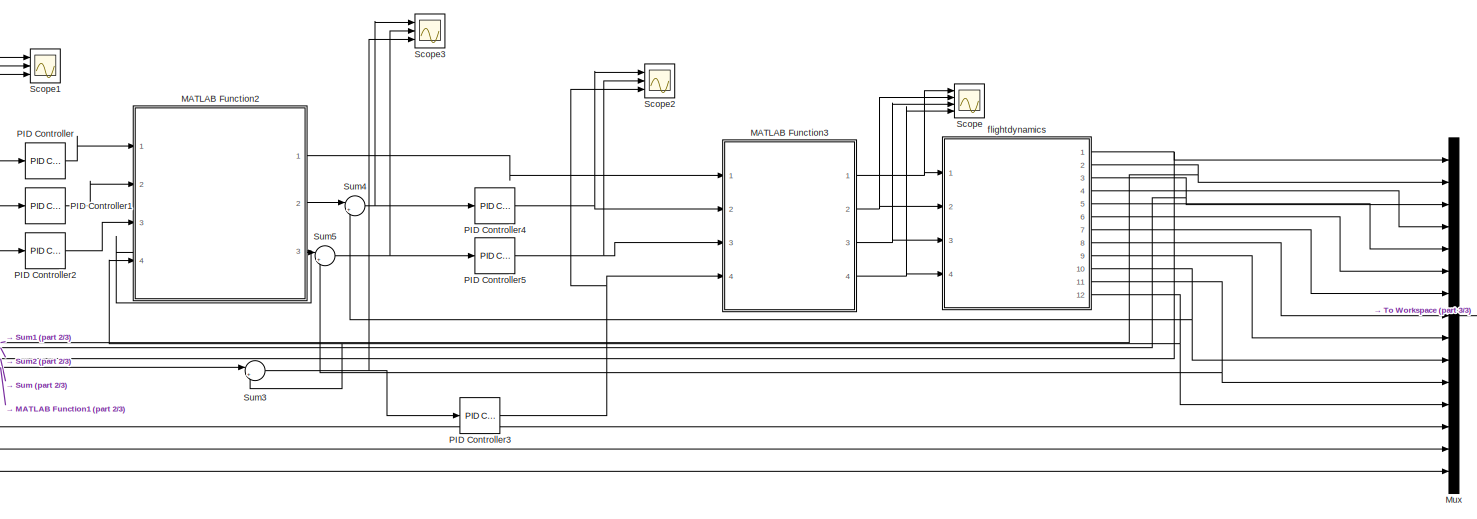
[diagram: root canvas - part 1/3, center side, full height]
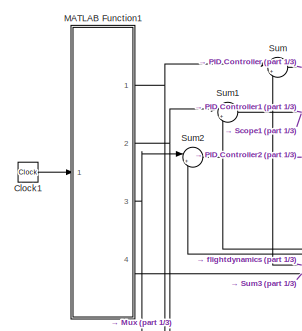
[diagram: root canvas - part 2/3, middle left region]
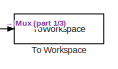
[diagram: root canvas - part 3/3, middle right region]
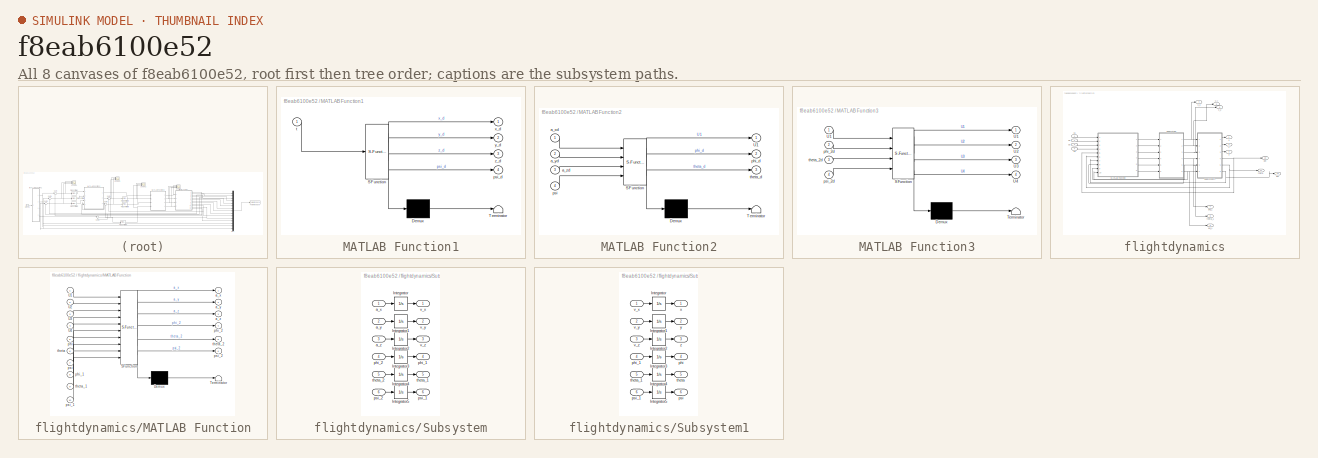
[diagram: thumbnail index - all 8 canvases of the model, root first then tree order]
MODEL slx_f8eab6100e52
KIND model
CONFIG AbsTol = auto
CONFIG EnableMultiTasking = off
CONFIG FixedStep = auto
CONFIG MaxStep = auto
CONFIG MinStep = auto
CONFIG RelTol = 1e-3
CONFIG SampleTimeConstraint = Unconstrained
CONFIG SolverName = VariableStepAuto
CONFIG StartTime = 0.0
CONFIG StopTime = 10
BLOCK [Clock] Clock1
BLOCK [SubSystem] MATLAB Function1
  ErrorFcn = Stateflow.Translate.translate
  PermitHierarchicalResolution = ExplicitOnly
  Ports = [1, 4]
  RequestExecContextInheritance = off
  SFBlockType = MATLAB Function
  TreatAsAtomicUnit = on
BLOCK [Demux] MATLAB Function1/ Demux 
  Outputs = 1
  Ports = [1, 1]
BLOCK [S-Function] MATLAB Function1/ SFunction 
  EnableBusSupport = on
  FunctionName = sf_sfun
  PortCounts = [1 5]
  Ports = [1, 5]
  SFcnIsStateOwnerBlock = off
  SFunctionDeploymentMode = off
  Tag = Stateflow S-Function 1
BLOCK [Terminator] MATLAB Function1/ Terminator 
BLOCK [Outport] MATLAB Function1/psi_d
  Port = 4
BLOCK [Inport] MATLAB Function1/t
BLOCK [Outport] MATLAB Function1/x_d
BLOCK [Outport] MATLAB Function1/y_d
  Port = 2
BLOCK [Outport] MATLAB Function1/z_d
  Port = 3
BLOCK [SubSystem] MATLAB Function2
  ErrorFcn = Stateflow.Translate.translate
  PermitHierarchicalResolution = ExplicitOnly
  Ports = [4, 3]
  RequestExecContextInheritance = off
  SFBlockType = MATLAB Function
  TreatAsAtomicUnit = on
BLOCK [Demux] MATLAB Function2/ Demux 
  Outputs = 1
  Ports = [1, 1]
BLOCK [S-Function] MATLAB Function2/ SFunction 
  EnableBusSupport = on
  FunctionName = sf_sfun
  PortCounts = [4 4]
  Ports = [4, 4]
  SFcnIsStateOwnerBlock = off
  SFunctionDeploymentMode = off
  Tag = Stateflow S-Function 4
BLOCK [Terminator] MATLAB Function2/ Terminator 
BLOCK [Outport] MATLAB Function2/U1
BLOCK [Inport] MATLAB Function2/a_xd
BLOCK [Inport] MATLAB Function2/a_yd
  Port = 2
BLOCK [Inport] MATLAB Function2/a_zd
  Port = 3
BLOCK [Outport] MATLAB Function2/phi_d
  Port = 2
BLOCK [Inport] MATLAB Function2/psi
  Port = 4
BLOCK [Outport] MATLAB Function2/theta_d
  Port = 3
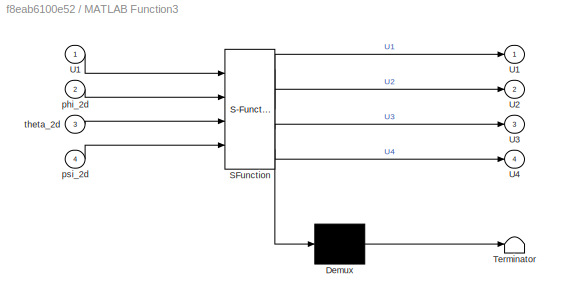
BLOCK [SubSystem] MATLAB Function3
  ErrorFcn = Stateflow.Translate.translate
  PermitHierarchicalResolution = ExplicitOnly
  Ports = [4, 4]
  RequestExecContextInheritance = off
  SFBlockType = MATLAB Function
  TreatAsAtomicUnit = on
BLOCK [Demux] MATLAB Function3/ Demux 
  Outputs = 1
  Ports = [1, 1]
BLOCK [S-Function] MATLAB Function3/ SFunction 
  EnableBusSupport = on
  FunctionName = sf_sfun
  PortCounts = [4 5]
  Ports = [4, 5]
  SFcnIsStateOwnerBlock = off
  SFunctionDeploymentMode = off
  Tag = Stateflow S-Function 5
BLOCK [Terminator] MATLAB Function3/ Terminator 
BLOCK [Outport] MATLAB Function3/U1
BLOCK [Inport] MATLAB Function3/U1 
BLOCK [Outport] MATLAB Function3/U2
  Port = 2
BLOCK [Outport] MATLAB Function3/U3
  Port = 3
BLOCK [Outport] MATLAB Function3/U4
  Port = 4
BLOCK [Inport] MATLAB Function3/phi_2d
  Port = 2
BLOCK [Inport] MATLAB Function3/psi_2d
  Port = 4
BLOCK [Inport] MATLAB Function3/theta_2d
  Port = 3
BLOCK [Mux] Mux
  DisplayOption = bar
  Inputs = 15
  Ports = [15, 1]
BLOCK [Reference] PID Controller  REF=slpidlib/PID Controller
  Ports = [1, 1]
  SourceBlock = slpidlib/PID Controller
  SourceProductBaseCode = SL
  SourceType = PID 1dof
BLOCK [Reference] PID Controller1  REF=slpidlib/PID Controller
  Ports = [1, 1]
  SourceBlock = slpidlib/PID Controller
  SourceProductBaseCode = SL
  SourceType = PID 1dof
BLOCK [Reference] PID Controller2  REF=slpidlib/PID Controller
  Ports = [1, 1]
  SourceBlock = slpidlib/PID Controller
  SourceProductBaseCode = SL
  SourceType = PID 1dof
BLOCK [Reference] PID Controller3  REF=slpidlib/PID Controller
  Ports = [1, 1]
  SourceBlock = slpidlib/PID Controller
  SourceProductBaseCode = SL
  SourceType = PID 1dof
BLOCK [Reference] PID Controller4  REF=slpidlib/PID Controller
  Ports = [1, 1]
  SourceBlock = slpidlib/PID Controller
  SourceProductBaseCode = SL
  SourceType = PID 1dof
BLOCK [Reference] PID Controller5  REF=slpidlib/PID Controller
  Ports = [1, 1]
  SourceBlock = slpidlib/PID Controller
  SourceProductBaseCode = SL
  SourceType = PID 1dof
BLOCK [Scope] Scope
  Floating = off
  NumInputPorts = 4
  Ports = [4]
  ScopeSpecificationString = Simulink.scopes.TimeScopeBlockCfg('CurrentConfiguration', extmgr.ConfigurationSet(extmgr.Configuration('Core','General UI',true),extmgr.Configuration('Core','Source UI',true),extmgr.Configuration('Sources','WiredSimulink',true),extmgr.Configuration('Visuals','Time Domain',true,'SerializedDisplays',{struct('MinYLimReal','-250.00000','MaxYLimReal','250.00000','YLabelReal','','MinYLimMag',' 0.00000',...<+1417ch>
BLOCK [Scope] Scope1
  Floating = off
  NumInputPorts = 3
  Ports = [3]
  ScopeSpecificationString = Simulink.scopes.TimeScopeBlockCfg('CurrentConfiguration', extmgr.ConfigurationSet(extmgr.Configuration('Core','General UI',true),extmgr.Configuration('Core','Source UI',true),extmgr.Configuration('Sources','WiredSimulink',true,'DataLoggingVariableName','ScopeData1'),extmgr.Configuration('Visuals','Time Domain',true,'SerializedDisplays',{struct('MinYLimReal','-0.14839','MaxYLimReal','0.18388','YLab...<+1374ch>
BLOCK [Scope] Scope2
  Floating = off
  NumInputPorts = 3
  Ports = [3]
  ScopeSpecificationString = Simulink.scopes.TimeScopeBlockCfg('CurrentConfiguration', extmgr.ConfigurationSet(extmgr.Configuration('Core','General UI',true),extmgr.Configuration('Core','Source UI',true),extmgr.Configuration('Sources','WiredSimulink',true,'DataLoggingVariableName','ScopeData2'),extmgr.Configuration('Visuals','Time Domain',true,'SerializedDisplays',{struct('MinYLimReal','-972.96644','MaxYLimReal','1794.18286',...<+1426ch>
BLOCK [Scope] Scope3
  Floating = off
  NumInputPorts = 3
  Ports = [3]
  ScopeSpecificationString = Simulink.scopes.TimeScopeBlockCfg('CurrentConfiguration', extmgr.ConfigurationSet(extmgr.Configuration('Core','General UI',true),extmgr.Configuration('Core','Source UI',true),extmgr.Configuration('Sources','WiredSimulink',true,'DataLoggingVariableName','ScopeData3'),extmgr.Configuration('Visuals','Time Domain',true,'SerializedDisplays',{struct('MinYLimReal','-1.43088','MaxYLimReal','1.26825','YLab...<+1377ch>
BLOCK [Sum] Sum
  Inputs = |+-
  Ports = [2, 1]
BLOCK [Sum] Sum1
  Inputs = |+-
  Ports = [2, 1]
BLOCK [Sum] Sum2
  Inputs = |+-
  Ports = [2, 1]
BLOCK [Sum] Sum3
  Inputs = |+-
  Ports = [2, 1]
BLOCK [Sum] Sum4
  Inputs = |+-
  Ports = [2, 1]
BLOCK [Sum] Sum5
  Inputs = |+-
  Ports = [2, 1]
BLOCK [ToWorkspace] To Workspace
  FixptAsFi = on
  MaxDataPoints = inf
  Ports = [1]
  SampleTime = -1
  SaveFormat = Structure With Time
  VariableName = simout
BLOCK [SubSystem] flightdynamics
  Ports = [4, 12]
  RequestExecContextInheritance = off
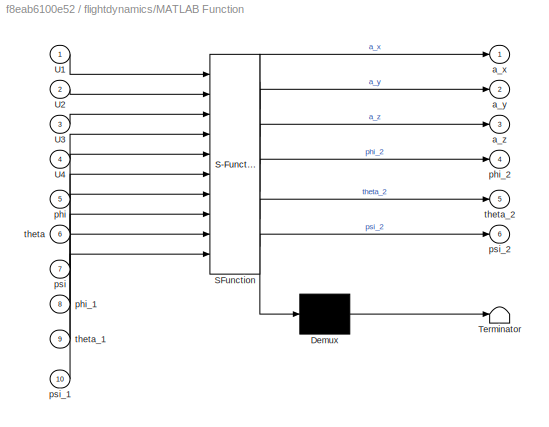
BLOCK [SubSystem] flightdynamics/MATLAB Function
  ErrorFcn = Stateflow.Translate.translate
  PermitHierarchicalResolution = ExplicitOnly
  Ports = [10, 6]
  RequestExecContextInheritance = off
  SFBlockType = MATLAB Function
  TreatAsAtomicUnit = on
BLOCK [Demux] flightdynamics/MATLAB Function/ Demux 
  Outputs = 1
  Ports = [1, 1]
BLOCK [S-Function] flightdynamics/MATLAB Function/ SFunction 
  EnableBusSupport = on
  FunctionName = sf_sfun
  PortCounts = [10 7]
  Ports = [10, 7]
  SFcnIsStateOwnerBlock = off
  SFunctionDeploymentMode = off
  Tag = Stateflow S-Function 2
BLOCK [Terminator] flightdynamics/MATLAB Function/ Terminator 
BLOCK [Inport] flightdynamics/MATLAB Function/U1
BLOCK [Inport] flightdynamics/MATLAB Function/U2
  Port = 2
BLOCK [Inport] flightdynamics/MATLAB Function/U3
  Port = 3
BLOCK [Inport] flightdynamics/MATLAB Function/U4
  Port = 4
BLOCK [Outport] flightdynamics/MATLAB Function/a_x
BLOCK [Outport] flightdynamics/MATLAB Function/a_y
  Port = 2
BLOCK [Outport] flightdynamics/MATLAB Function/a_z
  Port = 3
BLOCK [Inport] flightdynamics/MATLAB Function/phi
  Port = 5
BLOCK [Inport] flightdynamics/MATLAB Function/phi_1
  Port = 8
BLOCK [Outport] flightdynamics/MATLAB Function/phi_2
  Port = 4
BLOCK [Inport] flightdynamics/MATLAB Function/psi
  Port = 7
BLOCK [Inport] flightdynamics/MATLAB Function/psi_1
  Port = 10
BLOCK [Outport] flightdynamics/MATLAB Function/psi_2
  Port = 6
BLOCK [Inport] flightdynamics/MATLAB Function/theta
  Port = 6
BLOCK [Inport] flightdynamics/MATLAB Function/theta_1
  Port = 9
BLOCK [Outport] flightdynamics/MATLAB Function/theta_2
  Port = 5
BLOCK [SubSystem] flightdynamics/Subsystem
  Ports = [6, 6]
  RequestExecContextInheritance = off
BLOCK [Integrator] flightdynamics/Subsystem/Integrator
  Ports = [1, 1]
BLOCK [Integrator] flightdynamics/Subsystem/Integrator1
  Ports = [1, 1]
BLOCK [Integrator] flightdynamics/Subsystem/Integrator2
  Ports = [1, 1]
BLOCK [Integrator] flightdynamics/Subsystem/Integrator3
  Ports = [1, 1]
BLOCK [Integrator] flightdynamics/Subsystem/Integrator4
  Ports = [1, 1]
BLOCK [Integrator] flightdynamics/Subsystem/Integrator5
  Ports = [1, 1]
BLOCK [Inport] flightdynamics/Subsystem/a_x
BLOCK [Inport] flightdynamics/Subsystem/a_y
  Port = 2
BLOCK [Inport] flightdynamics/Subsystem/a_z
  Port = 3
BLOCK [Outport] flightdynamics/Subsystem/phi_1
  Port = 4
BLOCK [Inport] flightdynamics/Subsystem/phi_2
  Port = 4
BLOCK [Outport] flightdynamics/Subsystem/psi_1
  Port = 6
BLOCK [Inport] flightdynamics/Subsystem/psi_2
  Port = 6
BLOCK [Outport] flightdynamics/Subsystem/theta_1
  Port = 5
BLOCK [Inport] flightdynamics/Subsystem/theta_2
  Port = 5
BLOCK [Outport] flightdynamics/Subsystem/v_x
BLOCK [Outport] flightdynamics/Subsystem/v_y
  Port = 2
BLOCK [Outport] flightdynamics/Subsystem/v_z
  Port = 3
BLOCK [SubSystem] flightdynamics/Subsystem1
  Ports = [6, 6]
  RequestExecContextInheritance = off
BLOCK [Integrator] flightdynamics/Subsystem1/Integrator
  InitialCondition = 1
  Ports = [1, 1]
BLOCK [Integrator] flightdynamics/Subsystem1/Integrator1
  Ports = [1, 1]
BLOCK [Integrator] flightdynamics/Subsystem1/Integrator2
  InitialCondition = 0.3
  Ports = [1, 1]
BLOCK [Integrator] flightdynamics/Subsystem1/Integrator3
  Ports = [1, 1]
BLOCK [Integrator] flightdynamics/Subsystem1/Integrator4
  Ports = [1, 1]
BLOCK [Integrator] flightdynamics/Subsystem1/Integrator5
  Ports = [1, 1]
BLOCK [Outport] flightdynamics/Subsystem1/phi
  Port = 4
BLOCK [Inport] flightdynamics/Subsystem1/phi_1
  Port = 4
BLOCK [Outport] flightdynamics/Subsystem1/psi
  Port = 6
BLOCK [Inport] flightdynamics/Subsystem1/psi_1
  Port = 6
BLOCK [Outport] flightdynamics/Subsystem1/theta
  Port = 5
BLOCK [Inport] flightdynamics/Subsystem1/theta_1
  Port = 5
BLOCK [Inport] flightdynamics/Subsystem1/v_x
BLOCK [Inport] flightdynamics/Subsystem1/v_y
  Port = 2
BLOCK [Inport] flightdynamics/Subsystem1/v_z
  Port = 3
BLOCK [Outport] flightdynamics/Subsystem1/x
BLOCK [Outport] flightdynamics/Subsystem1/y
  Port = 2
BLOCK [Outport] flightdynamics/Subsystem1/z
  Port = 3
BLOCK [Outport] flightdynamics/phi
  Port = 10
BLOCK [Outport] flightdynamics/phi_1
  Port = 7
BLOCK [Outport] flightdynamics/psi
  Port = 12
BLOCK [Outport] flightdynamics/psi_1
  Port = 9
BLOCK [Outport] flightdynamics/theta
  Port = 11
BLOCK [Outport] flightdynamics/theta_1
  Port = 8
BLOCK [Inport] flightdynamics/u1
BLOCK [Inport] flightdynamics/u2
  Port = 2
BLOCK [Inport] flightdynamics/u3
  Port = 3
BLOCK [Inport] flightdynamics/u4
  Port = 4
BLOCK [Outport] flightdynamics/v_x
  Port = 4
BLOCK [Outport] flightdynamics/v_y
  Port = 5
BLOCK [Outport] flightdynamics/v_z
  Port = 6
BLOCK [Outport] flightdynamics/x
BLOCK [Outport] flightdynamics/y
  Port = 2
BLOCK [Outport] flightdynamics/z
  Port = 3
LINE Clock1:1 -> MATLAB Function1:1
NET MATLAB Function1:1 -> Mux:13, Sum:1
NET MATLAB Function1:2 -> Mux:14, Sum1:1
NET MATLAB Function1:3 -> Mux:15, Sum2:1
LINE MATLAB Function1:4 -> Sum3:1
LINE MATLAB Function2:1 -> MATLAB Function3:1
LINE MATLAB Function2:2 -> Sum4:1
LINE MATLAB Function2:3 -> Sum5:1
NET MATLAB Function3:1 -> Scope:1, flightdynamics:1
NET MATLAB Function3:2 -> Scope:2, flightdynamics:2
NET MATLAB Function3:3 -> Scope:3, flightdynamics:3
NET MATLAB Function3:4 -> Scope:4, flightdynamics:4
LINE Mux:1 -> To Workspace:1
LINE PID Controller1:1 -> MATLAB Function2:2
LINE PID Controller2:1 -> MATLAB Function2:3
NET PID Controller3:1 -> MATLAB Function3:4, Scope2:3
NET PID Controller4:1 -> MATLAB Function3:2, Scope2:1
NET PID Controller5:1 -> MATLAB Function3:3, Scope2:2
LINE PID Controller:1 -> MATLAB Function2:1
NET Sum1:1 -> PID Controller1:1, Scope1:2
NET Sum2:1 -> PID Controller2:1, Scope1:3
NET Sum3:1 -> PID Controller3:1, Scope3:3
NET Sum4:1 -> PID Controller4:1, Scope3:1
NET Sum5:1 -> PID Controller5:1, Scope3:2
NET Sum:1 -> PID Controller:1, Scope1:1
LINE flightdynamics/MATLAB Function:1 -> flightdynamics/Subsystem:1
LINE flightdynamics/MATLAB Function:2 -> flightdynamics/Subsystem:2
LINE flightdynamics/MATLAB Function:3 -> flightdynamics/Subsystem:3
LINE flightdynamics/MATLAB Function:4 -> flightdynamics/Subsystem:4
LINE flightdynamics/MATLAB Function:5 -> flightdynamics/Subsystem:5
LINE flightdynamics/MATLAB Function:6 -> flightdynamics/Subsystem:6
LINE flightdynamics/Subsystem/Integrator1:1 -> flightdynamics/Subsystem/v_y:1
LINE flightdynamics/Subsystem/Integrator2:1 -> flightdynamics/Subsystem/v_z:1
LINE flightdynamics/Subsystem/Integrator3:1 -> flightdynamics/Subsystem/phi_1:1
LINE flightdynamics/Subsystem/Integrator4:1 -> flightdynamics/Subsystem/theta_1:1
LINE flightdynamics/Subsystem/Integrator5:1 -> flightdynamics/Subsystem/psi_1:1
LINE flightdynamics/Subsystem/Integrator:1 -> flightdynamics/Subsystem/v_x:1
LINE flightdynamics/Subsystem/a_x:1 -> flightdynamics/Subsystem/Integrator:1
LINE flightdynamics/Subsystem/a_y:1 -> flightdynamics/Subsystem/Integrator1:1
LINE flightdynamics/Subsystem/a_z:1 -> flightdynamics/Subsystem/Integrator2:1
LINE flightdynamics/Subsystem/phi_2:1 -> flightdynamics/Subsystem/Integrator3:1
LINE flightdynamics/Subsystem/psi_2:1 -> flightdynamics/Subsystem/Integrator5:1
LINE flightdynamics/Subsystem/theta_2:1 -> flightdynamics/Subsystem/Integrator4:1
LINE flightdynamics/Subsystem1/Integrator1:1 -> flightdynamics/Subsystem1/y:1
LINE flightdynamics/Subsystem1/Integrator2:1 -> flightdynamics/Subsystem1/z:1
LINE flightdynamics/Subsystem1/Integrator3:1 -> flightdynamics/Subsystem1/phi:1
LINE flightdynamics/Subsystem1/Integrator4:1 -> flightdynamics/Subsystem1/theta:1
LINE flightdynamics/Subsystem1/Integrator5:1 -> flightdynamics/Subsystem1/psi:1
LINE flightdynamics/Subsystem1/Integrator:1 -> flightdynamics/Subsystem1/x:1
LINE flightdynamics/Subsystem1/phi_1:1 -> flightdynamics/Subsystem1/Integrator3:1
LINE flightdynamics/Subsystem1/psi_1:1 -> flightdynamics/Subsystem1/Integrator5:1
LINE flightdynamics/Subsystem1/theta_1:1 -> flightdynamics/Subsystem1/Integrator4:1
LINE flightdynamics/Subsystem1/v_x:1 -> flightdynamics/Subsystem1/Integrator:1
LINE flightdynamics/Subsystem1/v_y:1 -> flightdynamics/Subsystem1/Integrator1:1
LINE flightdynamics/Subsystem1/v_z:1 -> flightdynamics/Subsystem1/Integrator2:1
LINE flightdynamics/Subsystem1:1 -> flightdynamics/x:1
LINE flightdynamics/Subsystem1:2 -> flightdynamics/y:1
LINE flightdynamics/Subsystem1:3 -> flightdynamics/z:1
NET flightdynamics/Subsystem1:4 -> flightdynamics/MATLAB Function:5, flightdynamics/phi:1
NET flightdynamics/Subsystem1:5 -> flightdynamics/MATLAB Function:6, flightdynamics/theta:1
NET flightdynamics/Subsystem1:6 -> flightdynamics/MATLAB Function:7, flightdynamics/psi:1
NET flightdynamics/Subsystem:1 -> flightdynamics/Subsystem1:1, flightdynamics/v_x:1
NET flightdynamics/Subsystem:2 -> flightdynamics/Subsystem1:2, flightdynamics/v_y:1
NET flightdynamics/Subsystem:3 -> flightdynamics/Subsystem1:3, flightdynamics/v_z:1
NET flightdynamics/Subsystem:4 -> flightdynamics/MATLAB Function:8, flightdynamics/Subsystem1:4, flightdynamics/phi_1:1
NET flightdynamics/Subsystem:5 -> flightdynamics/MATLAB Function:9, flightdynamics/Subsystem1:5, flightdynamics/theta_1:1
NET flightdynamics/Subsystem:6 -> flightdynamics/MATLAB Function:10, flightdynamics/Subsystem1:6, flightdynamics/psi_1:1
LINE flightdynamics/u1:1 -> flightdynamics/MATLAB Function:1
LINE flightdynamics/u2:1 -> flightdynamics/MATLAB Function:2
LINE flightdynamics/u3:1 -> flightdynamics/MATLAB Function:3
LINE flightdynamics/u4:1 -> flightdynamics/MATLAB Function:4
NET flightdynamics:1 -> Mux:1, Sum:2
NET flightdynamics:10 -> Mux:10, Sum4:2
NET flightdynamics:11 -> Mux:11, Sum5:2
NET flightdynamics:12 -> MATLAB Function2:4, Mux:12, Sum3:2
NET flightdynamics:2 -> Mux:2, Sum1:2
NET flightdynamics:3 -> Mux:3, Sum2:2
LINE flightdynamics:4 -> Mux:4
LINE flightdynamics:5 -> Mux:5
LINE flightdynamics:6 -> Mux:6
LINE flightdynamics:7 -> Mux:7
LINE flightdynamics:8 -> Mux:8
LINE flightdynamics:9 -> Mux:9
note: NET lines group one-source signal fan-out (src -> all destinations, sorted); 1:1 wires keep LINE
CHART MATLAB Function1 states=1 transitions=1
  STATE_LABEL 'eML_blk_kernel()'
  STATE_LABEL 'SCRIPT:\nfunction [x_d,y_d,z_d,psi_d] = fcn(t)\nx_d=cos(t);\ny_d=sin(t);\nz_d=(t+0.1)^0.5;\npsi_d=sin(t+0.1)/(t+0.1);\nend\n\n'
CHART flightdynamics/MATLAB Function states=1 transitions=1
  STATE_LABEL 'eML_blk_kernel()'
  STATE_LABEL 'SCRIPT:\nfunction [a_x,a_y,a_z,phi_2,theta_2,psi_2]= fcn(U1,U2,U3,U4,phi,theta,psi,phi_1,theta_1,psi_1)\nm=2;\ng=9.8;\nJx=1.2416;Jy=1.2416;Jz=2.4832;\na_x=U1/m*(cos(phi)*sin(theta)*cos(psi)+sin(phi )*sin(psi));\na_y=U1/m*(cos(phi)*sin(theta)*sin(psi)-sin(phi)*cos(psi));\na_z=U1/m*cos(phi)*cos(theta)-g;\nphi_2=U2/Jx+theta_1*psi_1*(Jy-Jz)/Jx;\ntheta_2=U3/Jy+phi_1*psi_1*(Jz-Jx)/Jy;\npsi_2=U4/Jz+phi_1*theta_1*(...<+12ch>'
CHART MATLAB Function2 states=1 transitions=1
  STATE_LABEL 'eML_blk_kernel()'
  STATE_LABEL 'SCRIPT:\nfunction [U1,phi_d,theta_d] = fcn(a_xd,a_yd,a_zd,psi)\nm=2;g=9.8;\nphi_d=1/g*(a_xd*sin(psi)-a_yd*cos(psi));\ntheta_d=1/g*(a_xd*cos(psi)+a_yd*sin(psi));\nU1=m*(a_zd+g);\nU1=min(max(U1,-400),400);\n\n'
CHART MATLAB Function3 states=1 transitions=1
  STATE_LABEL 'eML_blk_kernel()'
  STATE_LABEL 'SCRIPT:\nfunction [U1,U2,U3,U4]= fcn(U1,phi_2d,theta_2d,psi_2d)\n\nIxx=1.2416;Iyy=1.2416;Izz=2.4832;\nU2=phi_2d*Ixx;\nU3=theta_2d*Iyy;\nU4=psi_2d*Izz;\nU2=min(max(U2,-200),200);\nU3=min(max(U3,-200),200);\nU4=min(max(U4,-200),200);'
CHART  states=0 transitions=0
CHART  states=0 transitions=0
CHART  states=0 transitions=0
CHART  states=0 transitions=0
